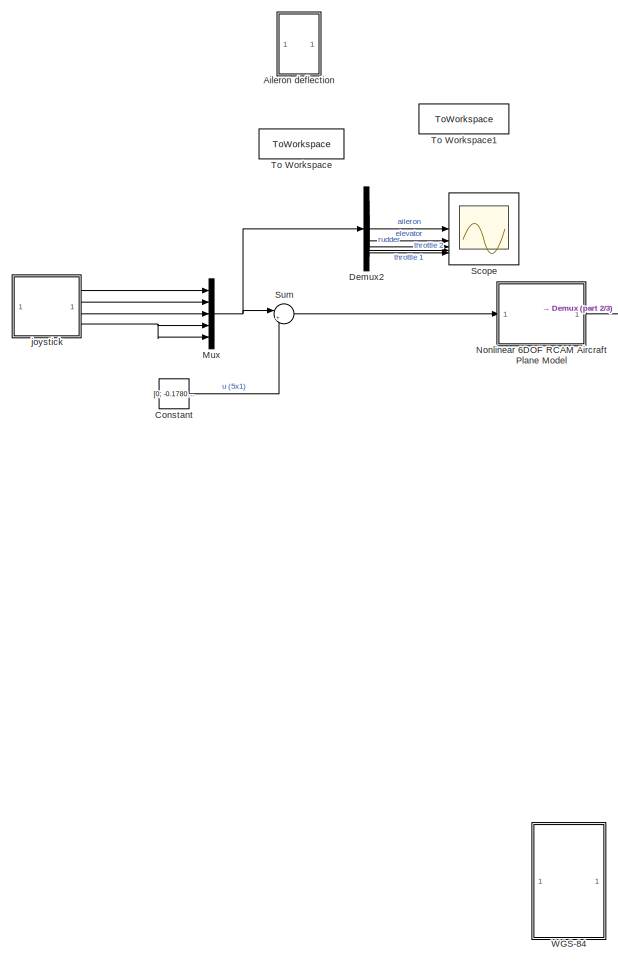
[diagram: root canvas - part 1/3, left side, full height]
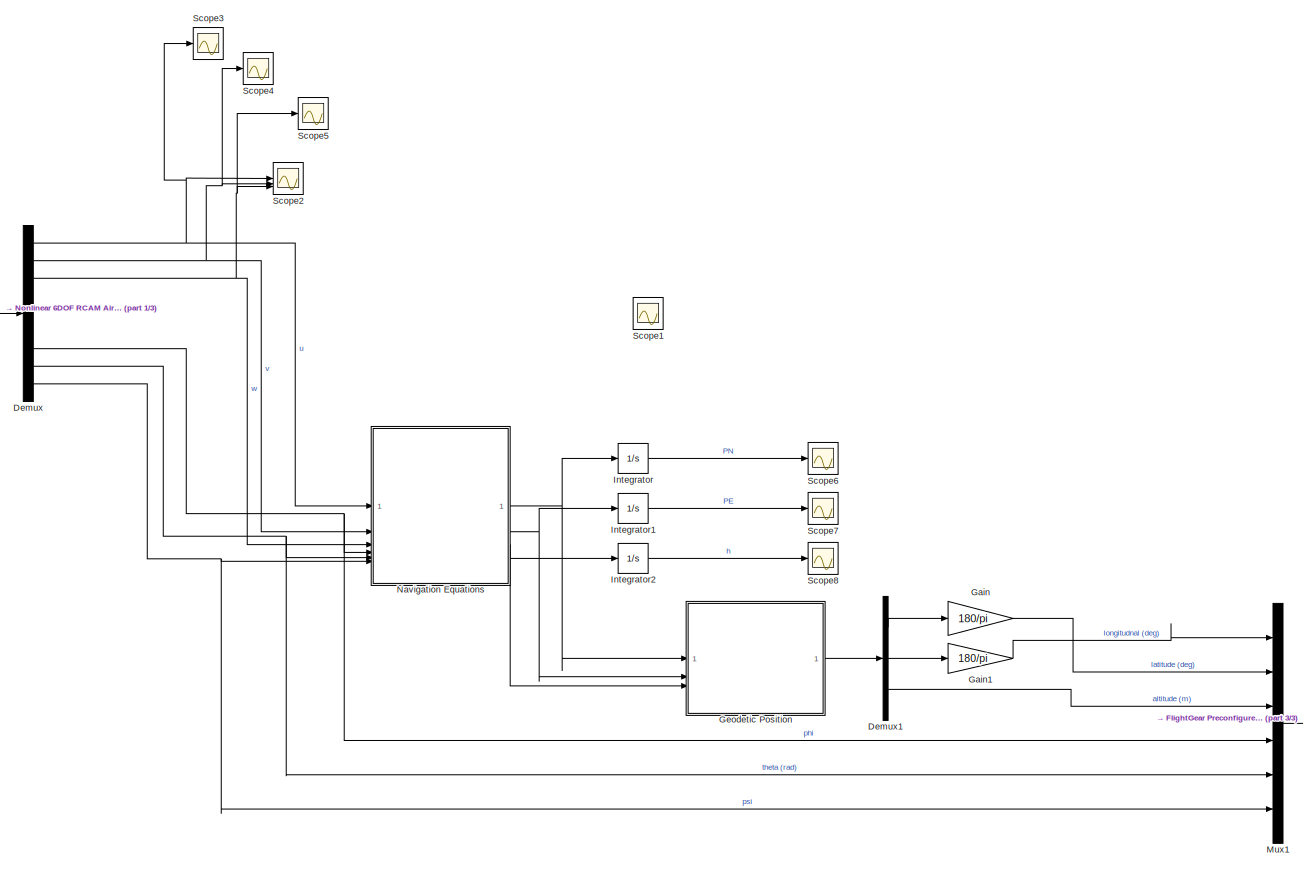
[diagram: root canvas - part 2/3, center side, full height]
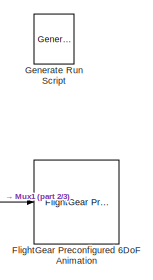
[diagram: root canvas - part 3/3, bottom right region]
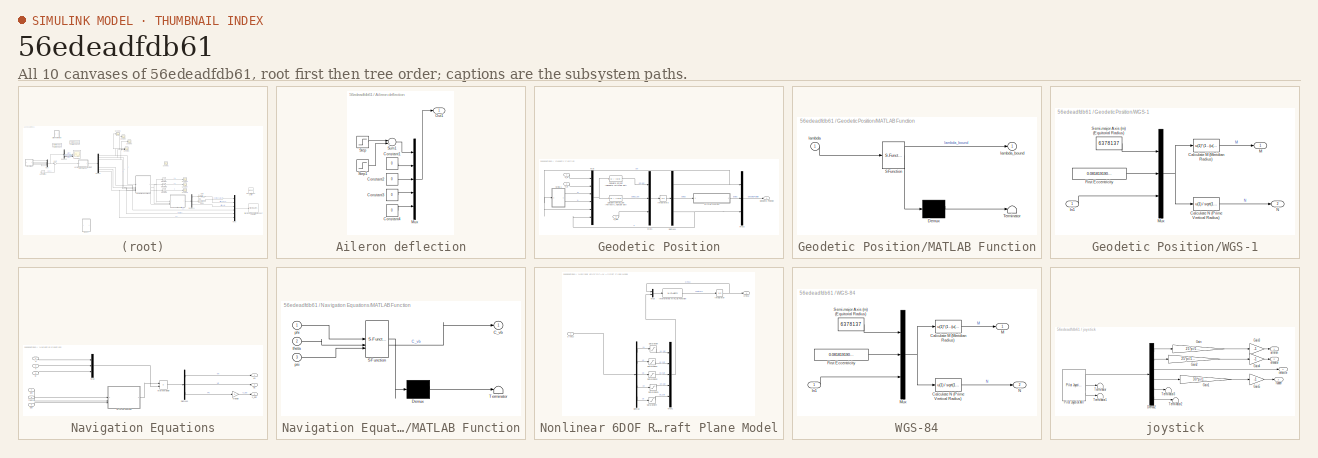
[diagram: thumbnail index - all 10 canvases of the model, root first then tree order]
MODEL slx_56edeadfdb61
KIND model
CONFIG AbsTol = auto
CONFIG EnableMultiTasking = off
CONFIG FixedStep = auto
CONFIG MaxStep = auto
CONFIG MinStep = auto
CONFIG RelTol = 1e-3
CONFIG SampleTimeConstraint = Unconstrained
CONFIG SolverName = VariableStepAuto
CONFIG StartTime = 0.0
CONFIG StopTime = 60
BLOCK [SubSystem] Aileron deflection
BLOCK [Constant] Aileron deflection/Constant1
  Value = 0
BLOCK [Constant] Aileron deflection/Constant2
  Value = 0
BLOCK [Constant] Aileron deflection/Constant3
  Value = 0
BLOCK [Constant] Aileron deflection/Constant4
  Value = 0
BLOCK [Mux] Aileron deflection/Mux
  DisplayOption = bar
  Inputs = 5
BLOCK [Outport] Aileron deflection/Out1
BLOCK [Step] Aileron deflection/Step
  After = 5*pi/180
  SampleTime = 0
  Time = 30
BLOCK [Step] Aileron deflection/Step1
  After = -5*pi/180
  SampleTime = 0
  Time = 30+2
BLOCK [Sum] Aileron deflection/Sum1
  Inputs = |++
BLOCK [Constant] Constant
  Value = [0; -0.1780; 0; 0.0821; 0.0821]
BLOCK [Demux] Demux
  Outputs = 9
BLOCK [Demux] Demux1
  Outputs = 3
BLOCK [Demux] Demux2
  Outputs = 5
BLOCK [Reference] FlightGear Preconfigured 6DoF Animation  REF=aerolibfltsims/FlightGear
Preconfigured
6DoF Animation
  SourceBlock = aerolibfltsims/FlightGear\nPreconfigured\n6DoF Animation
  SourceType = FlightGearQuick6DoFAnimation
BLOCK [Gain] Gain
  Gain = 180/pi
BLOCK [Gain] Gain1
  Gain = 180/pi
BLOCK [Reference] Generate Run Script  REF=aerolibfltsims/Generate
Run Script
  SourceBlock = aerolibfltsims/Generate\nRun Script
  SourceType = Generate FlightGear Run Script
BLOCK [SubSystem] Geodetic Position
BLOCK [Fcn] Geodetic Position/Calculate lamda_dot (Terrestrial Longitude dot)
  Expr = u(2) / ((u(6) + u(3)) * cos(u(5)))
BLOCK [Fcn] Geodetic Position/Calculate phi_dot (Geodetic Lattitude dot)
  Expr = u(1) / (u(3) + u(6))
BLOCK [Demux] Geodetic Position/Demux1
  Outputs = 3
BLOCK [Outport] Geodetic Position/Geodetic Position
BLOCK [Integrator] Geodetic Position/Integrator3
  InitialCondition = [lat0; lon0; h0]
BLOCK [SubSystem] Geodetic Position/MATLAB Function
  ErrorFcn = Stateflow.Translate.translate
  PermitHierarchicalResolution = ExplicitOnly
  SFBlockType = MATLAB Function
  TreatAsAtomicUnit = on
BLOCK [Demux] Geodetic Position/MATLAB Function/ Demux 
  Outputs = 1
BLOCK [S-Function] Geodetic Position/MATLAB Function/ SFunction 
  EnableBusSupport = off
  FunctionName = sf_sfun
  PortCounts = [1 2]
  SFcnIsStateOwnerBlock = off
  SFunctionDeploymentMode = off
  Tag = Stateflow S-Function 1
BLOCK [Terminator] Geodetic Position/MATLAB Function/ Terminator 
BLOCK [Inport] Geodetic Position/MATLAB Function/lambda
BLOCK [Outport] Geodetic Position/MATLAB Function/lambda_bound
BLOCK [Mux] Geodetic Position/Mux
  DisplayOption = bar
  Inputs = 6
BLOCK [Mux] Geodetic Position/Mux1
  DisplayOption = bar
  Inputs = 3
BLOCK [Mux] Geodetic Position/Mux2
  DisplayOption = bar
  Inputs = 3
BLOCK [Inport] Geodetic Position/V_E
  Port = 2
BLOCK [Inport] Geodetic Position/V_N
BLOCK [SubSystem] Geodetic Position/WGS-1
BLOCK [Fcn] Geodetic Position/WGS-1/Calculate M (Meridian Radius)
  Expr = u(1)*(1 - (u(2)^2)) / ((1 - (u(2)^2) * (sin(u(3))^2))^(3/2))
BLOCK [Fcn] Geodetic Position/WGS-1/Calculate N (Prime Vertical Radius)
  Expr = u(1) / sqrt(1 - (u(2)^2) * (sin(u(3))^2))
BLOCK [Constant] Geodetic Position/WGS-1/First Eccentricity
  Value = 0.081819190842622
BLOCK [Inport] Geodetic Position/WGS-1/In1
BLOCK [Outport] Geodetic Position/WGS-1/M
BLOCK [Mux] Geodetic Position/WGS-1/Mux
  DisplayOption = bar
  Inputs = 3
BLOCK [Outport] Geodetic Position/WGS-1/N
  Port = 2
BLOCK [Constant] Geodetic Position/WGS-1/Semi-major Axis (m) (Equitorial Radius)
  Value = 6378137
BLOCK [Inport] Geodetic Position/h_dot
  Port = 3
BLOCK [Integrator] Integrator
BLOCK [Integrator] Integrator1
BLOCK [Integrator] Integrator2
BLOCK [Mux] Mux
  DisplayOption = bar
  Inputs = 5
BLOCK [Mux] Mux1
  DisplayOption = bar
  Inputs = 6
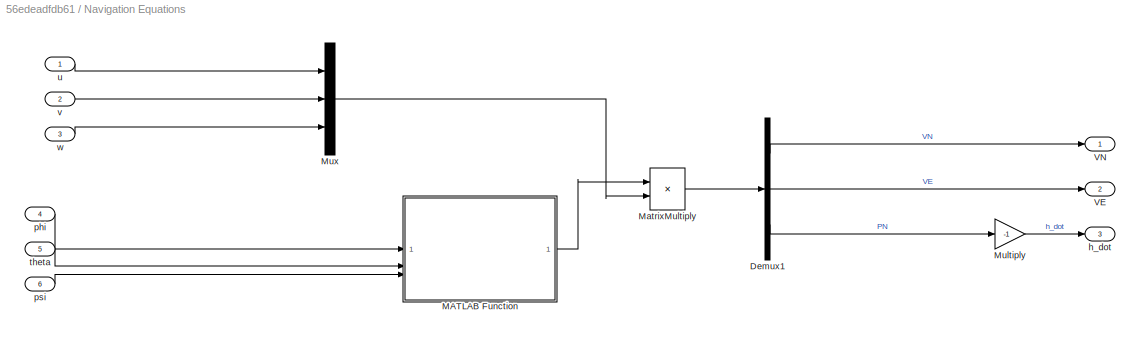
BLOCK [SubSystem] Navigation Equations
BLOCK [Demux] Navigation Equations/Demux1
  Outputs = 3
BLOCK [SubSystem] Navigation Equations/MATLAB Function
  ErrorFcn = Stateflow.Translate.translate
  PermitHierarchicalResolution = ExplicitOnly
  SFBlockType = MATLAB Function
  TreatAsAtomicUnit = on
BLOCK [Demux] Navigation Equations/MATLAB Function/ Demux 
  Outputs = 1
BLOCK [S-Function] Navigation Equations/MATLAB Function/ SFunction 
  EnableBusSupport = off
  FunctionName = sf_sfun
  PortCounts = [3 2]
  SFcnIsStateOwnerBlock = off
  SFunctionDeploymentMode = off
  Tag = Stateflow S-Function 2
BLOCK [Terminator] Navigation Equations/MATLAB Function/ Terminator 
BLOCK [Outport] Navigation Equations/MATLAB Function/C_vb
BLOCK [Inport] Navigation Equations/MATLAB Function/phi
BLOCK [Inport] Navigation Equations/MATLAB Function/psi
  Port = 3
BLOCK [Inport] Navigation Equations/MATLAB Function/theta
  Port = 2
BLOCK [Product] Navigation Equations/MatrixMultiply
  Multiplication = Matrix(*)
BLOCK [Gain] Navigation Equations/Multiply
  Gain = -1
BLOCK [Mux] Navigation Equations/Mux
  DisplayOption = bar
  Inputs = 3
BLOCK [Outport] Navigation Equations/VE
  Port = 2
BLOCK [Outport] Navigation Equations/VN
BLOCK [Outport] Navigation Equations/h_dot
  Port = 3
BLOCK [Inport] Navigation Equations/phi
  Port = 4
BLOCK [Inport] Navigation Equations/psi
  Port = 6
BLOCK [Inport] Navigation Equations/theta
  Port = 5
BLOCK [Inport] Navigation Equations/u
BLOCK [Inport] Navigation Equations/v
  Port = 2
BLOCK [Inport] Navigation Equations/w
  Port = 3
BLOCK [SubSystem] Nonlinear 6DOF RCAM Aircraft Plane Model
BLOCK [Demux] Nonlinear 6DOF RCAM Aircraft Plane Model/Demux
  Outputs = 5
BLOCK [Integrator] Nonlinear 6DOF RCAM Aircraft Plane Model/Integrator
  InitialCondition = x0
BLOCK [MATLABFcn] Nonlinear 6DOF RCAM Aircraft Plane Model/Interpreted MATLAB Function
  MATLABFcn = RCAM_model(u(1:9),u(10:14))
BLOCK [Mux] Nonlinear 6DOF RCAM Aircraft Plane Model/Mux
  DisplayOption = bar
  Inputs = 2
BLOCK [Mux] Nonlinear 6DOF RCAM Aircraft Plane Model/Mux1
  DisplayOption = bar
  Inputs = 5
BLOCK [Saturate] Nonlinear 6DOF RCAM Aircraft Plane Model/Saturation
  LowerLimit = u1min
  UpperLimit = u1max
BLOCK [Saturate] Nonlinear 6DOF RCAM Aircraft Plane Model/Saturation1
  LowerLimit = u1min
  UpperLimit = u1max
BLOCK [Saturate] Nonlinear 6DOF RCAM Aircraft Plane Model/Saturation2
  LowerLimit = u1min
  UpperLimit = u1max
BLOCK [Saturate] Nonlinear 6DOF RCAM Aircraft Plane Model/Saturation3
  LowerLimit = u1min
  UpperLimit = u1max
BLOCK [Saturate] Nonlinear 6DOF RCAM Aircraft Plane Model/Saturation4
  LowerLimit = u1min
  UpperLimit = u1max
BLOCK [Inport] Nonlinear 6DOF RCAM Aircraft Plane Model/u (5x1)
BLOCK [Outport] Nonlinear 6DOF RCAM Aircraft Plane Model/x(9x1)
BLOCK [Scope] Scope
  ActiveDisplayYMaximum = 1
  ActiveDisplayYMinimum = -1
  DataLoggingVariableName = ScopeData3
  Floating = off
  GraphicalSettings = {"Style":{"BackgroundColor":[0.12941176470588237,0.12941176470588237,0.12941176470588237],"AxesColor":[0.07058823529411765,0.07058823529411765,0.07058823529411765],"LabelsColor":[0.8509803921568627,0.8509803921568627,0.8509803921568627],"PreserveColors":false,"Visible":[true,true,true,true,true],"LineStyle":["-","-","-","-","-"],"LineWidth":[1.5,1.5,1.5,1.5,1.5],"BarWidth":[0.9,0.9,0.9,0.9,0.9],"L...<+3687ch>
  LayoutDimensionsString = [5, 1]
  MultipleDisplayCache = [{"MaxYLimMag":1,"MaxYLimReal":1,"MinYLimMag":0,"MinYLimReal":-1,"PlotAsMagnitudePhase":false,"ShowGrid":true,"ShowLegend":false,"Title":"%<SignalLabel>","YLabel":""},{"MaxYLimMag":1,"MaxYLimReal":1,"MinYLimMag":0,"MinYLimReal":-1,"PlotAsMagnitudePhase":false,"ShowGrid":true,"ShowLegend":false,"Title":"%<SignalLabel>","YLabel":""},{"MaxYLimMag":1,"MaxYLimReal":1,"MinYLimMag":0,"MinYLimReal":-1,"Pl...<+431ch>
  NumInputPorts = 5
  ScopeFrameLocation = window
  WasSavedAsWebScope = on
  WindowPosition = [488.000000,222.000000,560.000000,420.000000,]
BLOCK [Scope] Scope1
  Floating = off
  GraphicalSettings = {"GraphicalSettings":{"LegacySettings":true,"Style":{"Style":{"PlotType":"Auto"}}}}
  NumInputPorts = 1
  WasSavedAsWebScope = on
BLOCK [Scope] Scope2
  ActiveDisplayYMaximum = 190.41451704390158
  ActiveDisplayYMinimum = -115.46318833968678
  DataLoggingVariableName = ScopeData1
  Floating = off
  GraphicalSettings = {"Style":{"BackgroundColor":[0.12941176470588237,0.12941176470588237,0.12941176470588237],"AxesColor":[0.07058823529411765,0.07058823529411765,0.07058823529411765],"LabelsColor":[0.8509803921568627,0.8509803921568627,0.8509803921568627],"PreserveColors":false,"Visible":[true,true,true],"LineStyle":["-","-","-"],"LineWidth":[1.5,1.5,1.5],"BarWidth":[0.9,0.9,0.9],"LineColor":["auto","auto","auto"],"...<+2755ch>
  LayoutDimensionsString = [3,1]
  MultipleDisplayCache = [{"MaxYLimMag":10,"MaxYLimReal":190.41451704390158,"MinYLimMag":0,"MinYLimReal":-115.46318833968678,"PlotAsMagnitudePhase":false,"ShowGrid":true,"ShowLegend":false,"Title":"%<SignalLabel>","YLabel":""},{"MaxYLimMag":10,"MaxYLimReal":15.783825060156339,"MinYLimMag":0,"MinYLimReal":-16.893252180671311,"PlotAsMagnitudePhase":false,"ShowGrid":true,"ShowLegend":false,"Title":"%<SignalLabel>","YLabel":"...<+204ch>  <repeated x4 — deduplicated; at blocks: Scope2, Scope3, Scope4, Scope5>
  NumInputPorts = 3
  ScopeFrameLocation = window
  Visible = on
  WasSavedAsWebScope = on
  WindowPosition = [438.000000,260.000000,661.000000,344.000000,]
BLOCK [Scope] Scope3
  ActiveDisplayYMaximum = 190.41451704390158
  ActiveDisplayYMinimum = -115.46318833968678
  DataLoggingVariableName = ScopeData2
  Floating = off
  GraphicalSettings = {"Style":{"BackgroundColor":[0.12941176470588237,0.12941176470588237,0.12941176470588237],"AxesColor":[0.07058823529411765,0.07058823529411765,0.07058823529411765],"LabelsColor":[0.8509803921568627,0.8509803921568627,0.8509803921568627],"PreserveColors":false,"Visible":[true,true,true,true,true,true,true],"LineStyle":["-","-","-","-","-","-","-"],"LineWidth":[1.5,1.5,1.5,1.5,1.5,1.5,1.5],"BarWidth...<+3181ch>  <repeated x3 — deduplicated; at blocks: Scope3, Scope4, Scope5>
  LayoutDimensionsString = [3,1]
  NumInputPorts = 1
  ScopeFrameLocation = window
  WasSavedAsWebScope = on
  WindowPosition = [11.000000,471.000000,730.000000,326.000000,]
BLOCK [Scope] Scope4
  ActiveDisplayYMaximum = 190.41451704390158
  ActiveDisplayYMinimum = -115.46318833968678
  DataLoggingVariableName = ScopeData4
  Floating = off
  LayoutDimensionsString = [3,1]
  NumInputPorts = 1
  ScopeFrameLocation = window
  WasSavedAsWebScope = on
  WindowPosition = [11.000000,471.000000,730.000000,326.000000,]
BLOCK [Scope] Scope5
  ActiveDisplayYMaximum = 190.41451704390158
  ActiveDisplayYMinimum = -115.46318833968678
  DataLoggingVariableName = ScopeData5
  Floating = off
  LayoutDimensionsString = [3,1]
  NumInputPorts = 1
  ScopeFrameLocation = window
  WasSavedAsWebScope = on
  WindowPosition = [11.000000,471.000000,730.000000,326.000000,]
BLOCK [Scope] Scope6
  ActiveDisplayYMaximum = 625.66382781010861
  ActiveDisplayYMinimum = -336.04878377704415
  DataLoggingVariableName = ScopeData6
  Floating = off
  GraphicalSettings = {"Style":{"BackgroundColor":[0.12941176470588237,0.12941176470588237,0.12941176470588237],"AxesColor":[0.07058823529411765,0.07058823529411765,0.07058823529411765],"LabelsColor":[0.8509803921568627,0.8509803921568627,0.8509803921568627],"PreserveColors":false,"Visible":[true],"LineStyle":["-"],"LineWidth":[1.5],"BarWidth":[0.9],"LineColor":["auto"],"LineFaceAlpha":[1],"LineEdgeAlpha":[1],"Marker":...<+1953ch>
  LayoutDimensionsString = [1,1]
  MultipleDisplayCache = [{"MaxYLimMag":10,"MaxYLimReal":625.66382781010861,"MinYLimMag":0,"MinYLimReal":-336.04878377704415,"PlotAsMagnitudePhase":false,"ShowGrid":true,"ShowLegend":false,"Title":"%<SignalLabel>","YLabel":""}]
  NumInputPorts = 1
  ScopeFrameLocation = window
  Visible = on
  WasSavedAsWebScope = on
  WindowPosition = [917.000000,-9.000000,777.000000,221.000000,]
BLOCK [Scope] Scope7
  ActiveDisplayYMaximum = 190.41451704390158
  ActiveDisplayYMinimum = -115.46318833968678
  DataLoggingVariableName = ScopeData7
  Floating = off
  GraphicalSettings = {"Style":{"BackgroundColor":[0.12941176470588237,0.12941176470588237,0.12941176470588237],"AxesColor":[0.07058823529411765,0.07058823529411765,0.07058823529411765],"LabelsColor":[0.8509803921568627,0.8509803921568627,0.8509803921568627],"PreserveColors":false,"Visible":[true],"LineStyle":["-"],"LineWidth":[1.5],"BarWidth":[0.9],"LineColor":["auto"],"LineFaceAlpha":[1],"LineEdgeAlpha":[1],"Marker":...<+1955ch>
  LayoutDimensionsString = [1,1]
  MultipleDisplayCache = [{"MaxYLimMag":10,"MaxYLimReal":190.41451704390158,"MinYLimMag":0,"MinYLimReal":-115.46318833968678,"PlotAsMagnitudePhase":false,"ShowGrid":true,"ShowLegend":false,"Title":"%<SignalLabel>","YLabel":""}]
  NumInputPorts = 1
  ScopeFrameLocation = window
  Visible = on
  WasSavedAsWebScope = on
  WindowPosition = [293.000000,312.000000,950.000000,240.000000,]
BLOCK [Scope] Scope8
  ActiveDisplayYMaximum = 328.44496651210937
  ActiveDisplayYMinimum = -228.9226672413669
  DataLoggingVariableName = ScopeData8
  Floating = off
  GraphicalSettings = {"Style":{"BackgroundColor":[0.12941176470588237,0.12941176470588237,0.12941176470588237],"AxesColor":[0.07058823529411765,0.07058823529411765,0.07058823529411765],"LabelsColor":[0.8509803921568627,0.8509803921568627,0.8509803921568627],"PreserveColors":false,"Visible":[true],"LineStyle":["-"],"LineWidth":[1.5],"BarWidth":[0.9],"LineColor":["auto"],"LineFaceAlpha":[1],"LineEdgeAlpha":[1],"Marker":...<+1950ch>
  LayoutDimensionsString = [1,1]
  MultipleDisplayCache = [{"MaxYLimMag":10,"MaxYLimReal":328.44496651210937,"MinYLimMag":0,"MinYLimReal":-228.9226672413669,"PlotAsMagnitudePhase":false,"ShowGrid":true,"ShowLegend":false,"Title":"%<SignalLabel>","YLabel":""}]
  NumInputPorts = 1
  ScopeFrameLocation = window
  Visible = on
  WasSavedAsWebScope = on
  WindowPosition = [919.000000,202.000000,690.000000,275.000000,]
BLOCK [Sum] Sum
  Inputs = |++
BLOCK [ToWorkspace] To Workspace
  FixptAsFi = on
  MaxDataPoints = inf
  SampleTime = -1
  SaveFormat = Timeseries
  VariableName = simX
BLOCK [ToWorkspace] To Workspace1
  FixptAsFi = on
  MaxDataPoints = inf
  SampleTime = -1
  SaveFormat = Timeseries
  VariableName = simU
BLOCK [SubSystem] WGS-84
BLOCK [Fcn] WGS-84/Calculate M (Meridian Radius)
  Expr = u(1)*(1 - (u(2)^2)) / ((1 - (u(2)^2) * (sin(u(3))^2))^(3/2))
BLOCK [Fcn] WGS-84/Calculate N (Prime Vertical Radius)
  Expr = u(1) / sqrt(1 - (u(2)^2) * (sin(u(3))^2))
BLOCK [Constant] WGS-84/First Eccentricity
  Value = 0.081819190842622
BLOCK [Inport] WGS-84/In1
BLOCK [Outport] WGS-84/M
BLOCK [Mux] WGS-84/Mux
  DisplayOption = bar
  Inputs = 3
BLOCK [Outport] WGS-84/N
  Port = 2
BLOCK [Constant] WGS-84/Semi-major Axis (m) (Equitorial Radius)
  Value = 6378137
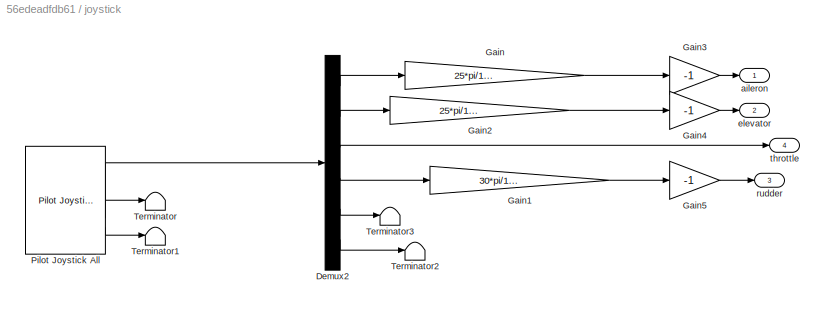
BLOCK [SubSystem] joystick
BLOCK [Demux] joystick/Demux2
  Outputs = 6
BLOCK [Gain] joystick/Gain
  Gain = 25*pi/180
BLOCK [Gain] joystick/Gain1
  Gain = 30*pi/180
BLOCK [Gain] joystick/Gain2
  Gain = 25*pi/180
BLOCK [Gain] joystick/Gain3
  Gain = -1
BLOCK [Gain] joystick/Gain4
  Gain = -1
BLOCK [Gain] joystick/Gain5
  Gain = -1
BLOCK [Reference] joystick/Pilot Joystick All  REF=aerolibanimutils/Pilot Joystick
  LibrarySourceBlock = aerolibanimutils/Pilot Joystick All
  SourceBlock = aerolibanimutils/Pilot Joystick
  SourceType = PilotJoystick
BLOCK [Terminator] joystick/Terminator
BLOCK [Terminator] joystick/Terminator1
BLOCK [Terminator] joystick/Terminator2
BLOCK [Terminator] joystick/Terminator3
BLOCK [Outport] joystick/aileron
BLOCK [Outport] joystick/elevator
  Port = 2
BLOCK [Outport] joystick/rudder
  Port = 3
BLOCK [Outport] joystick/throttle
  Port = 4
LINE Aileron deflection/Constant1:1 -> Aileron deflection/Mux:2
LINE Aileron deflection/Constant2:1 -> Aileron deflection/Mux:3
LINE Aileron deflection/Constant3:1 -> Aileron deflection/Mux:4
LINE Aileron deflection/Constant4:1 -> Aileron deflection/Mux:5
LINE Aileron deflection/Mux:1 -> Aileron deflection/Out1:1
LINE Aileron deflection/Step1:1 -> Aileron deflection/Sum1:2
LINE Aileron deflection/Step:1 -> Aileron deflection/Sum1:1
LINE Aileron deflection/Sum1:1 -> Aileron deflection/Mux:1
LINE Constant:1 -> Sum:2
LINE Demux1:1 -> Gain:1
LINE Demux1:2 -> Gain1:1
LINE Demux1:3 -> Mux1:3
LINE Demux2:1 -> Scope:1
LINE Demux2:2 -> Scope:2
LINE Demux2:3 -> Scope:3
LINE Demux2:4 -> Scope:4
LINE Demux2:5 -> Scope:5
NET Demux:1 -> Navigation Equations:1, Scope2:1, Scope3:1
NET Demux:2 -> Navigation Equations:2, Scope2:2, Scope4:1
NET Demux:3 -> Navigation Equations:3, Scope2:3, Scope5:1
NET Demux:7 -> Mux1:4, Navigation Equations:4
NET Demux:8 -> Mux1:5, Navigation Equations:5
NET Demux:9 -> Mux1:6, Navigation Equations:6
LINE Gain1:1 -> Mux1:1
LINE Gain:1 -> Mux1:2
LINE Geodetic Position/Calculate lamda_dot (Terrestrial Longitude dot):1 -> Geodetic Position/Mux1:2
LINE Geodetic Position/Calculate phi_dot (Geodetic Lattitude dot):1 -> Geodetic Position/Mux1:1
NET Geodetic Position/Demux1:1 -> Geodetic Position/Mux2:1, Geodetic Position/Mux:5, Geodetic Position/WGS-1:1
LINE Geodetic Position/Demux1:2 -> Geodetic Position/MATLAB Function:1
NET Geodetic Position/Demux1:3 -> Geodetic Position/Mux2:3, Geodetic Position/Mux:6
LINE Geodetic Position/Integrator3:1 -> Geodetic Position/Demux1:1
LINE Geodetic Position/MATLAB Function:1 -> Geodetic Position/Mux2:2
LINE Geodetic Position/Mux1:1 -> Geodetic Position/Integrator3:1
LINE Geodetic Position/Mux2:1 -> Geodetic Position/Geodetic Position:1
NET Geodetic Position/Mux:1 -> Geodetic Position/Calculate lamda_dot (Terrestrial Longitude dot):1, Geodetic Position/Calculate phi_dot (Geodetic Lattitude dot):1
LINE Geodetic Position/V_E:1 -> Geodetic Position/Mux:2
LINE Geodetic Position/V_N:1 -> Geodetic Position/Mux:1
LINE Geodetic Position/WGS-1/Calculate M (Meridian Radius):1 -> Geodetic Position/WGS-1/M:1
LINE Geodetic Position/WGS-1/Calculate N (Prime Vertical Radius):1 -> Geodetic Position/WGS-1/N:1
LINE Geodetic Position/WGS-1/First Eccentricity:1 -> Geodetic Position/WGS-1/Mux:2
LINE Geodetic Position/WGS-1/In1:1 -> Geodetic Position/WGS-1/Mux:3
NET Geodetic Position/WGS-1/Mux:1 -> Geodetic Position/WGS-1/Calculate M (Meridian Radius):1, Geodetic Position/WGS-1/Calculate N (Prime Vertical Radius):1
LINE Geodetic Position/WGS-1/Semi-major Axis (m) (Equitorial Radius):1 -> Geodetic Position/WGS-1/Mux:1
LINE Geodetic Position/WGS-1:1 -> Geodetic Position/Mux:3
LINE Geodetic Position/WGS-1:2 -> Geodetic Position/Mux:4
LINE Geodetic Position/h_dot:1 -> Geodetic Position/Mux1:3
LINE Geodetic Position:1 -> Demux1:1
LINE Integrator1:1 -> Scope7:1
LINE Integrator2:1 -> Scope8:1
LINE Integrator:1 -> Scope6:1
LINE Mux1:1 -> FlightGear Preconfigured 6DoF Animation:1
NET Mux:1 -> Demux2:1, Sum:1
LINE Navigation Equations/Demux1:1 -> Navigation Equations/VN:1
LINE Navigation Equations/Demux1:2 -> Navigation Equations/VE:1
LINE Navigation Equations/Demux1:3 -> Navigation Equations/Multiply:1
LINE Navigation Equations/MATLAB Function:1 -> Navigation Equations/MatrixMultiply:1
LINE Navigation Equations/MatrixMultiply:1 -> Navigation Equations/Demux1:1
LINE Navigation Equations/Multiply:1 -> Navigation Equations/h_dot:1
LINE Navigation Equations/Mux:1 -> Navigation Equations/MatrixMultiply:2
LINE Navigation Equations/phi:1 -> Navigation Equations/MATLAB Function:1
LINE Navigation Equations/psi:1 -> Navigation Equations/MATLAB Function:3
LINE Navigation Equations/theta:1 -> Navigation Equations/MATLAB Function:2
LINE Navigation Equations/u:1 -> Navigation Equations/Mux:1
LINE Navigation Equations/v:1 -> Navigation Equations/Mux:2
LINE Navigation Equations/w:1 -> Navigation Equations/Mux:3
NET Navigation Equations:1 -> Geodetic Position:1, Integrator:1
NET Navigation Equations:2 -> Geodetic Position:2, Integrator1:1
NET Navigation Equations:3 -> Geodetic Position:3, Integrator2:1
LINE Nonlinear 6DOF RCAM Aircraft Plane Model/Demux:1 -> Nonlinear 6DOF RCAM Aircraft Plane Model/Saturation:1
LINE Nonlinear 6DOF RCAM Aircraft Plane Model/Demux:2 -> Nonlinear 6DOF RCAM Aircraft Plane Model/Saturation1:1
LINE Nonlinear 6DOF RCAM Aircraft Plane Model/Demux:3 -> Nonlinear 6DOF RCAM Aircraft Plane Model/Saturation2:1
LINE Nonlinear 6DOF RCAM Aircraft Plane Model/Demux:4 -> Nonlinear 6DOF RCAM Aircraft Plane Model/Saturation3:1
LINE Nonlinear 6DOF RCAM Aircraft Plane Model/Demux:5 -> Nonlinear 6DOF RCAM Aircraft Plane Model/Saturation4:1
NET Nonlinear 6DOF RCAM Aircraft Plane Model/Integrator:1 -> Nonlinear 6DOF RCAM Aircraft Plane Model/Mux:1, Nonlinear 6DOF RCAM Aircraft Plane Model/x(9x1):1
LINE Nonlinear 6DOF RCAM Aircraft Plane Model/Interpreted MATLAB Function:1 -> Nonlinear 6DOF RCAM Aircraft Plane Model/Integrator:1
LINE Nonlinear 6DOF RCAM Aircraft Plane Model/Mux1:1 -> Nonlinear 6DOF RCAM Aircraft Plane Model/Mux:2
LINE Nonlinear 6DOF RCAM Aircraft Plane Model/Mux:1 -> Nonlinear 6DOF RCAM Aircraft Plane Model/Interpreted MATLAB Function:1
LINE Nonlinear 6DOF RCAM Aircraft Plane Model/Saturation1:1 -> Nonlinear 6DOF RCAM Aircraft Plane Model/Mux1:2
LINE Nonlinear 6DOF RCAM Aircraft Plane Model/Saturation2:1 -> Nonlinear 6DOF RCAM Aircraft Plane Model/Mux1:3
LINE Nonlinear 6DOF RCAM Aircraft Plane Model/Saturation3:1 -> Nonlinear 6DOF RCAM Aircraft Plane Model/Mux1:4
LINE Nonlinear 6DOF RCAM Aircraft Plane Model/Saturation4:1 -> Nonlinear 6DOF RCAM Aircraft Plane Model/Mux1:5
LINE Nonlinear 6DOF RCAM Aircraft Plane Model/Saturation:1 -> Nonlinear 6DOF RCAM Aircraft Plane Model/Mux1:1
LINE Nonlinear 6DOF RCAM Aircraft Plane Model/u (5x1):1 -> Nonlinear 6DOF RCAM Aircraft Plane Model/Demux:1
LINE Nonlinear 6DOF RCAM Aircraft Plane Model:1 -> Demux:1
LINE Sum:1 -> Nonlinear 6DOF RCAM Aircraft Plane Model:1
LINE WGS-84/Calculate M (Meridian Radius):1 -> WGS-84/M:1
LINE WGS-84/Calculate N (Prime Vertical Radius):1 -> WGS-84/N:1
LINE WGS-84/First Eccentricity:1 -> WGS-84/Mux:2
LINE WGS-84/In1:1 -> WGS-84/Mux:3
NET WGS-84/Mux:1 -> WGS-84/Calculate M (Meridian Radius):1, WGS-84/Calculate N (Prime Vertical Radius):1
LINE WGS-84/Semi-major Axis (m) (Equitorial Radius):1 -> WGS-84/Mux:1
LINE joystick/Demux2:1 -> joystick/Gain:1
LINE joystick/Demux2:2 -> joystick/Gain2:1
LINE joystick/Demux2:3 -> joystick/throttle:1
LINE joystick/Demux2:4 -> joystick/Gain1:1
LINE joystick/Demux2:5 -> joystick/Terminator3:1
LINE joystick/Demux2:6 -> joystick/Terminator2:1
LINE joystick/Gain1:1 -> joystick/Gain5:1
LINE joystick/Gain2:1 -> joystick/Gain4:1
LINE joystick/Gain3:1 -> joystick/aileron:1
LINE joystick/Gain4:1 -> joystick/elevator:1
LINE joystick/Gain5:1 -> joystick/rudder:1
LINE joystick/Gain:1 -> joystick/Gain3:1
LINE joystick/Pilot Joystick All:1 -> joystick/Demux2:1
LINE joystick/Pilot Joystick All:2 -> joystick/Terminator:1
LINE joystick/Pilot Joystick All:3 -> joystick/Terminator1:1
LINE joystick:1 -> Mux:1
LINE joystick:2 -> Mux:2
LINE joystick:3 -> Mux:3
NET joystick:4 -> Mux:4, Mux:5
note: NET lines group one-source signal fan-out (src -> all destinations, sorted); 1:1 wires keep LINE
CHART Navigation Equations/MATLAB Function states=1 transitions=1
  STATE_LABEL 'eML_blk_kernel()'
  STATE_LABEL "SCRIPT:\nfunction C_vb = calc_C_vb(phi, theta, psi)\n% CALC_C_VB  Vehicle-to-Body (NED→Body) Direction Cosine Matrix\n%\n%   phi   = roll  (rad)\n%   theta = pitch (rad)\n%   psi   = yaw   (rad)\n%\n%   The matrix C_vb maps earth-frame (NED) velocity vector [V_N; V_E; V_D]\n%   to body-frame velocity vector [u; v; w].\n%\n%   Relationship:\n%       C_vb = (C_bv)';   % transpose of body→vehicle matrix\n%\n%   Us...<+682ch>"
CHART Geodetic Position/MATLAB Function states=1 transitions=1
  STATE_LABEL 'eML_blk_kernel()'
  STATE_LABEL 'SCRIPT:\nfunction lambda_bound = LongitudeBound(lambda)\n% Keeps longitude within [-pi, pi]\nlambda_bound = wrapToPi(lambda);\nend\n'
CHART  states=0 transitions=0
CHART  states=0 transitions=0
